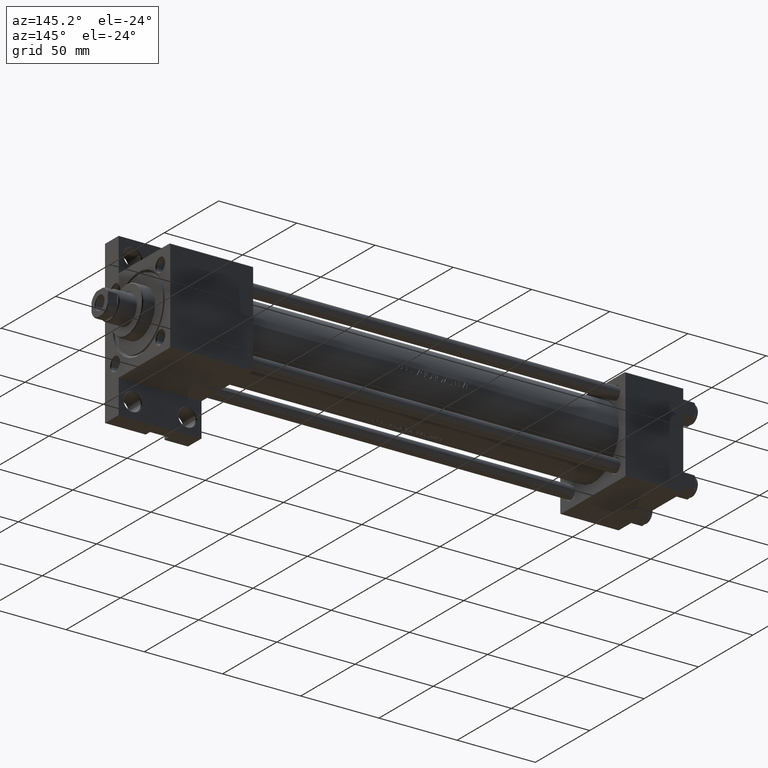
[diagram: clean part render]
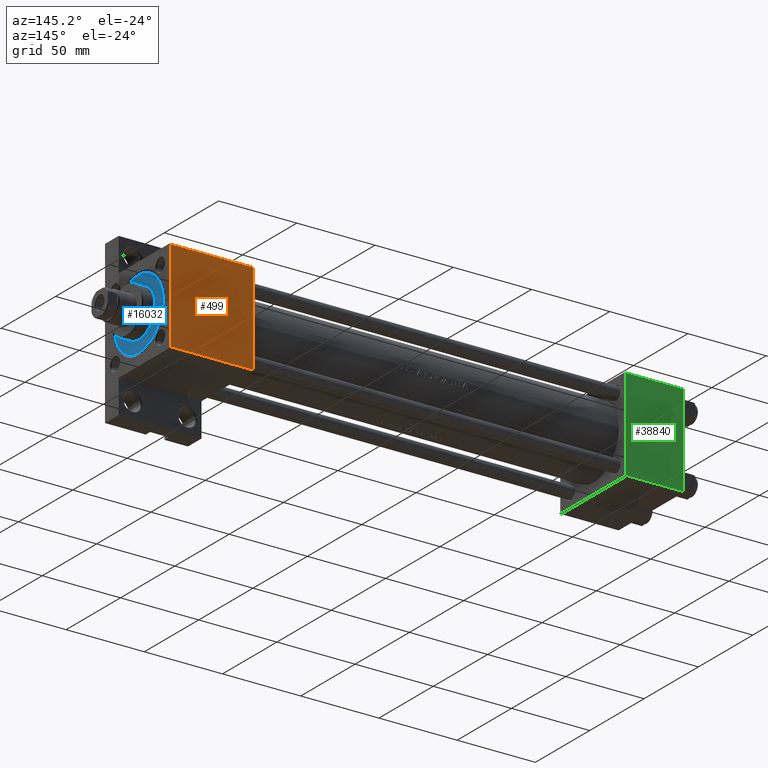
[diagram: same view with three faces highlighted in distinct colors, each labeled with its STEP entity id]
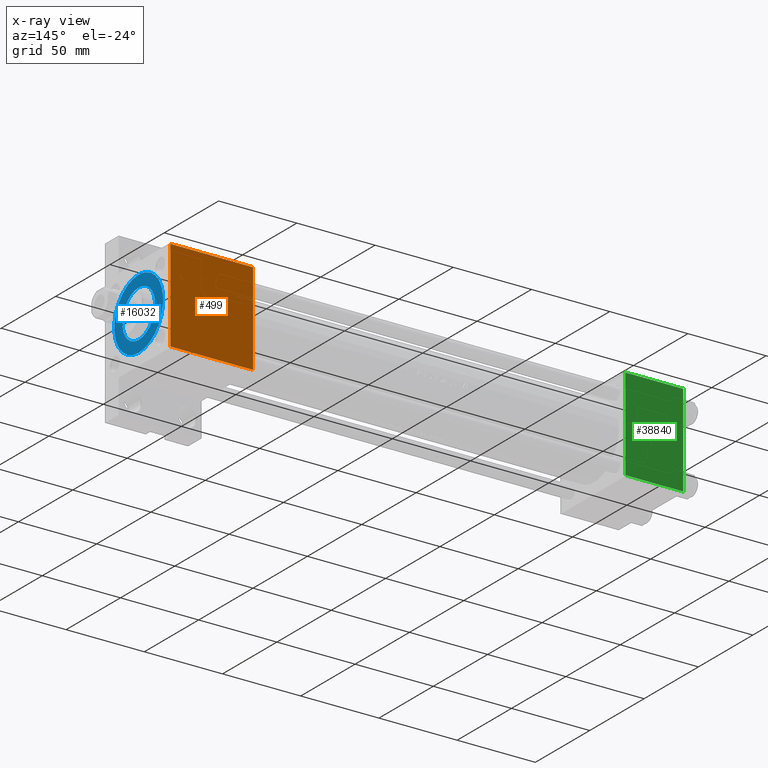
[diagram: x-ray of the same camera — body ghosted, the three highlighted faces saturated]
A machine part, auxiliary view with three faces highlighted in distinct colors.
The next image is the same camera in x-ray (body ghosted, the three faces saturated) — at least one of them is partly hidden behind the body in this view.
Their STEP definitions:

[orange] entity #499 — the highlighted planar face has unit normal (0, -1, -0).
#499 = ADVANCED_FACE ( 'NONE', ( #32233 ), #20622, .F. ) ;
#1911 = DIRECTION ( 'NONE',  ( 0.000000000000000000, 1.000000000000000000, 1.156482317317871478E-16 ) ) ;
#2574 = VERTEX_POINT ( 'NONE', #44727 ) ;
#5418 = EDGE_CURVE ( 'NONE', #2574, #12508, #47270, .T. ) ;
#6478 = CARTESIAN_POINT ( 'NONE',  ( 274.9999999999999432, 29.50000000000002487, 30.00000000000000000 ) ) ;
#7396 = ORIENTED_EDGE ( 'NONE', *, *, #25277, .T. ) ;
#8031 = ORIENTED_EDGE ( 'NONE', *, *, #27864, .T. ) ;
#8811 = DIRECTION ( 'NONE',  ( 0.000000000000000000, -1.000000000000000000, -1.156482317317871478E-16 ) ) ;
#9785 = CARTESIAN_POINT ( 'NONE',  ( 327.9999999999999432, 30.00000000000000000, 30.00000000000000000 ) ) ;
#10789 = CARTESIAN_POINT ( 'NONE',  ( 327.9999999999999432, -29.50000000000000000, 29.99999999999999289 ) ) ;
#11992 = CARTESIAN_POINT ( 'NONE',  ( 274.9999999999999432, -29.50000000000000000, 29.99999999999999289 ) ) ;
#12508 = VERTEX_POINT ( 'NONE', #30417 ) ;
#12955 = LINE ( 'NONE', #34918, #15678 ) ;
#13664 = AXIS2_PLACEMENT_3D ( 'NONE', #9785, #42836, #1911 ) ;
#15678 = VECTOR ( 'NONE', #16400, 1000.000000000000000 ) ;
#16238 = EDGE_LOOP ( 'NONE', ( #47550, #7396, #8031, #16788 ) ) ;
#16400 = DIRECTION ( 'NONE',  ( 0.000000000000000000, -1.000000000000000000, -1.156482317317871478E-16 ) ) ;
#16788 = ORIENTED_EDGE ( 'NONE', *, *, #28862, .T. ) ;
#20388 = CARTESIAN_POINT ( 'NONE',  ( 327.9999999999999432, 30.00000000000000000, 30.00000000000000000 ) ) ;
#20622 = PLANE ( 'NONE',  #13664 ) ;
#20986 = LINE ( 'NONE', #44155, #40052 ) ;
#25277 = EDGE_CURVE ( 'NONE', #2574, #48119, #20986, .T. ) ;
#27864 = EDGE_CURVE ( 'NONE', #48119, #32930, #12955, .T. ) ;
#28862 = EDGE_CURVE ( 'NONE', #32930, #12508, #36689, .T. ) ;
#30417 = CARTESIAN_POINT ( 'NONE',  ( 327.9999999999999432, -29.50000000000000000, 29.99999999999999289 ) ) ;
#32233 = FACE_OUTER_BOUND ( 'NONE', #16238, .T. ) ;
#32930 = VERTEX_POINT ( 'NONE', #11992 ) ;
#33470 = DIRECTION ( 'NONE',  ( 1.000000000000000000, 0.000000000000000000, 0.000000000000000000 ) ) ;
#34918 = CARTESIAN_POINT ( 'NONE',  ( 274.9999999999999432, 30.00000000000000000, 30.00000000000000000 ) ) ;
#36044 = DIRECTION ( 'NONE',  ( -1.000000000000000000, 0.000000000000000000, 0.000000000000000000 ) ) ;
#36689 = LINE ( 'NONE', #10789, #47248 ) ;
#40052 = VECTOR ( 'NONE', #36044, 1000.000000000000000 ) ;
#40438 = VECTOR ( 'NONE', #8811, 1000.000000000000000 ) ;
#42836 = DIRECTION ( 'NONE',  ( 0.000000000000000000, 1.156482317317871478E-16, -1.000000000000000000 ) ) ;
#44155 = CARTESIAN_POINT ( 'NONE',  ( 274.9999999999999432, 29.50000000000002487, 30.00000000000000000 ) ) ;
#44727 = CARTESIAN_POINT ( 'NONE',  ( 327.9999999999999432, 29.50000000000002487, 30.00000000000000000 ) ) ;
#47248 = VECTOR ( 'NONE', #33470, 1000.000000000000000 ) ;
#47270 = LINE ( 'NONE', #20388, #40438 ) ;
#47550 = ORIENTED_EDGE ( 'NONE', *, *, #5418, .F. ) ;
#48119 = VERTEX_POINT ( 'NONE', #6478 ) ;

[blue] entity #16032 — the highlighted planar face has unit normal (1, 0, 0).
#21 = AXIS2_PLACEMENT_3D ( 'NONE', #26183, #21988, #37056 ) ;
#532 = FACE_BOUND ( 'NONE', #1216, .T. ) ;
#1216 = EDGE_LOOP ( 'NONE', ( #45480, #27159 ) ) ;
#2268 = CARTESIAN_POINT ( 'NONE',  ( 22.50000000000000355, 2.755455298081545172E-15, 28.69999999999999929 ) ) ;
#3247 = CIRCLE ( 'NONE', #43421, 22.50000000000000355 ) ;
#4195 = AXIS2_PLACEMENT_3D ( 'NONE', #39749, #21206, #32328 ) ;
#4226 = FACE_OUTER_BOUND ( 'NONE', #37414, .T. ) ;
#4466 = DIRECTION ( 'NONE',  ( 0.000000000000000000, 0.000000000000000000, 1.000000000000000000 ) ) ;
#8648 = CARTESIAN_POINT ( 'NONE',  ( 0.000000000000000000, 0.000000000000000000, 28.69999999999999929 ) ) ;
#12372 = DIRECTION ( 'NONE',  ( 1.000000000000000000, 0.000000000000000000, 0.000000000000000000 ) ) ;
#13447 = CARTESIAN_POINT ( 'NONE',  ( -15.00000000000000000, 0.000000000000000000, 28.69999999999999929 ) ) ;
#16032 = ADVANCED_FACE ( 'NONE', ( #532, #4226 ), #38747, .T. ) ;
#16789 = CIRCLE ( 'NONE', #4195, 15.00000000000000000 ) ;
#19384 = CARTESIAN_POINT ( 'NONE',  ( -22.50000000000000355, 0.000000000000000000, 28.69999999999999929 ) ) ;
#19491 = DIRECTION ( 'NONE',  ( 1.000000000000000000, 0.000000000000000000, -0.000000000000000000 ) ) ;
#20959 = CARTESIAN_POINT ( 'NONE',  ( 0.000000000000000000, 0.000000000000000000, 28.69999999999999929 ) ) ;
#21206 = DIRECTION ( 'NONE',  ( 0.000000000000000000, 0.000000000000000000, 1.000000000000000000 ) ) ;
#21988 = DIRECTION ( 'NONE',  ( 0.000000000000000000, 0.000000000000000000, 1.000000000000000000 ) ) ;
#24187 = CARTESIAN_POINT ( 'NONE',  ( 15.00000000000000000, 1.836970198721029589E-15, 28.69999999999999929 ) ) ;
#24864 = VERTEX_POINT ( 'NONE', #13447 ) ;
#25246 = VERTEX_POINT ( 'NONE', #2268 ) ;
#25744 = VERTEX_POINT ( 'NONE', #19384 ) ;
#26183 = CARTESIAN_POINT ( 'NONE',  ( 0.000000000000000000, 0.000000000000000000, 28.69999999999999929 ) ) ;
#27159 = ORIENTED_EDGE ( 'NONE', *, *, #29182, .F. ) ;
#28032 = AXIS2_PLACEMENT_3D ( 'NONE', #8648, #4466, #19491 ) ;
#28600 = DIRECTION ( 'NONE',  ( 1.000000000000000000, 0.000000000000000000, 0.000000000000000000 ) ) ;
#29182 = EDGE_CURVE ( 'NONE', #48389, #24864, #46463, .T. ) ;
#31775 = EDGE_CURVE ( 'NONE', #25246, #25744, #3247, .T. ) ;
#32328 = DIRECTION ( 'NONE',  ( 1.000000000000000000, 0.000000000000000000, 0.000000000000000000 ) ) ;
#34032 = CIRCLE ( 'NONE', #35623, 22.50000000000000355 ) ;
#34582 = CARTESIAN_POINT ( 'NONE',  ( 0.000000000000000000, 0.000000000000000000, 28.69999999999999929 ) ) ;
#35623 = AXIS2_PLACEMENT_3D ( 'NONE', #20959, #46862, #28600 ) ;
#37056 = DIRECTION ( 'NONE',  ( 1.000000000000000000, 0.000000000000000000, 0.000000000000000000 ) ) ;
#37320 = EDGE_CURVE ( 'NONE', #25744, #25246, #34032, .T. ) ;
#37414 = EDGE_LOOP ( 'NONE', ( #43012, #42727 ) ) ;
#38747 = PLANE ( 'NONE',  #28032 ) ;
#39749 = CARTESIAN_POINT ( 'NONE',  ( 0.000000000000000000, 0.000000000000000000, 28.69999999999999929 ) ) ;
#41744 = DIRECTION ( 'NONE',  ( 0.000000000000000000, 0.000000000000000000, 1.000000000000000000 ) ) ;
#42727 = ORIENTED_EDGE ( 'NONE', *, *, #31775, .T. ) ;
#43012 = ORIENTED_EDGE ( 'NONE', *, *, #37320, .T. ) ;
#43421 = AXIS2_PLACEMENT_3D ( 'NONE', #34582, #41744, #12372 ) ;
#45480 = ORIENTED_EDGE ( 'NONE', *, *, #45560, .F. ) ;
#45560 = EDGE_CURVE ( 'NONE', #24864, #48389, #16789, .T. ) ;
#46463 = CIRCLE ( 'NONE', #21, 15.00000000000000000 ) ;
#46862 = DIRECTION ( 'NONE',  ( 0.000000000000000000, 0.000000000000000000, 1.000000000000000000 ) ) ;
#48389 = VERTEX_POINT ( 'NONE', #24187 ) ;

[green] entity #38840 — the highlighted planar face has unit normal (0, -1, -0).
#514 = VERTEX_POINT ( 'NONE', #17169 ) ;
#1480 = DIRECTION ( 'NONE',  ( 0.000000000000000000, 1.000000000000000000, 1.156482317317871725E-16 ) ) ;
#2277 = LINE ( 'NONE', #24435, #39573 ) ;
#3462 = ORIENTED_EDGE ( 'NONE', *, *, #14152, .T. ) ;
#5413 = PLANE ( 'NONE',  #40390 ) ;
#7711 = EDGE_CURVE ( 'NONE', #514, #27948, #32299, .T. ) ;
#13144 = VERTEX_POINT ( 'NONE', #20141 ) ;
#14097 = EDGE_CURVE ( 'NONE', #514, #13144, #42464, .T. ) ;
#14133 = CARTESIAN_POINT ( 'NONE',  ( 0.000000000000000000, -29.49999999999998579, 29.99999999999999289 ) ) ;
#14152 = EDGE_CURVE ( 'NONE', #32276, #27948, #2277, .T. ) ;
#16246 = FACE_OUTER_BOUND ( 'NONE', #26382, .T. ) ;
#17169 = CARTESIAN_POINT ( 'NONE',  ( 37.00000000000000000, 29.49999999999999289, 30.00000000000000000 ) ) ;
#20141 = CARTESIAN_POINT ( 'NONE',  ( 0.000000000000000000, 29.49999999999999289, 30.00000000000000000 ) ) ;
#23702 = DIRECTION ( 'NONE',  ( -1.000000000000000000, 0.000000000000000000, 0.000000000000000000 ) ) ;
#24389 = CARTESIAN_POINT ( 'NONE',  ( 37.00000000000000000, 29.99999999999999289, 30.00000000000000000 ) ) ;
#24435 = CARTESIAN_POINT ( 'NONE',  ( 37.00000000000000000, -29.50000000000000000, 29.99999999999999289 ) ) ;
#26382 = EDGE_LOOP ( 'NONE', ( #44933, #3462, #37618, #42212 ) ) ;
#27118 = LINE ( 'NONE', #30330, #32395 ) ;
#27948 = VERTEX_POINT ( 'NONE', #40571 ) ;
#27952 = VECTOR ( 'NONE', #35502, 1000.000000000000000 ) ;
#30109 = VECTOR ( 'NONE', #23702, 1000.000000000000000 ) ;
#30330 = CARTESIAN_POINT ( 'NONE',  ( 0.000000000000000000, 29.99999999999999289, 30.00000000000000000 ) ) ;
#30872 = CARTESIAN_POINT ( 'NONE',  ( 0.000000000000000000, 29.49999999999999289, 30.00000000000000000 ) ) ;
#31988 = EDGE_CURVE ( 'NONE', #13144, #32276, #27118, .T. ) ;
#32276 = VERTEX_POINT ( 'NONE', #14133 ) ;
#32299 = LINE ( 'NONE', #24389, #27952 ) ;
#32395 = VECTOR ( 'NONE', #45382, 1000.000000000000000 ) ;
#35257 = CARTESIAN_POINT ( 'NONE',  ( 37.00000000000000000, 29.99999999999999289, 30.00000000000000000 ) ) ;
#35502 = DIRECTION ( 'NONE',  ( 0.000000000000000000, -1.000000000000000000, -1.156482317317871725E-16 ) ) ;
#35551 = DIRECTION ( 'NONE',  ( 1.000000000000000000, 0.000000000000000000, 0.000000000000000000 ) ) ;
#37618 = ORIENTED_EDGE ( 'NONE', *, *, #7711, .F. ) ;
#38840 = ADVANCED_FACE ( 'NONE', ( #16246 ), #5413, .F. ) ;
#39573 = VECTOR ( 'NONE', #35551, 1000.000000000000000 ) ;
#39709 = DIRECTION ( 'NONE',  ( 0.000000000000000000, 1.156482317317871725E-16, -1.000000000000000000 ) ) ;
#40390 = AXIS2_PLACEMENT_3D ( 'NONE', #35257, #39709, #1480 ) ;
#40571 = CARTESIAN_POINT ( 'NONE',  ( 37.00000000000000000, -29.49999999999998579, 29.99999999999999289 ) ) ;
#42212 = ORIENTED_EDGE ( 'NONE', *, *, #14097, .T. ) ;
#42464 = LINE ( 'NONE', #30872, #30109 ) ;
#44933 = ORIENTED_EDGE ( 'NONE', *, *, #31988, .T. ) ;
#45382 = DIRECTION ( 'NONE',  ( 0.000000000000000000, -1.000000000000000000, -1.156482317317871725E-16 ) ) ;